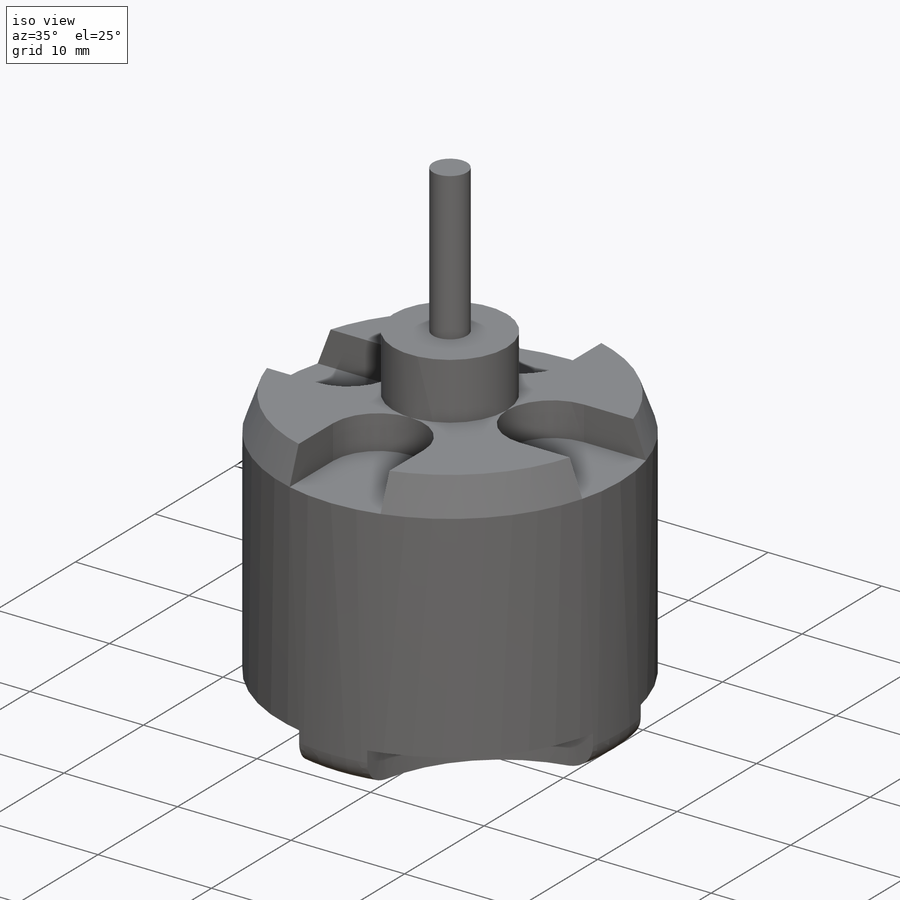
[diagram: iso view]
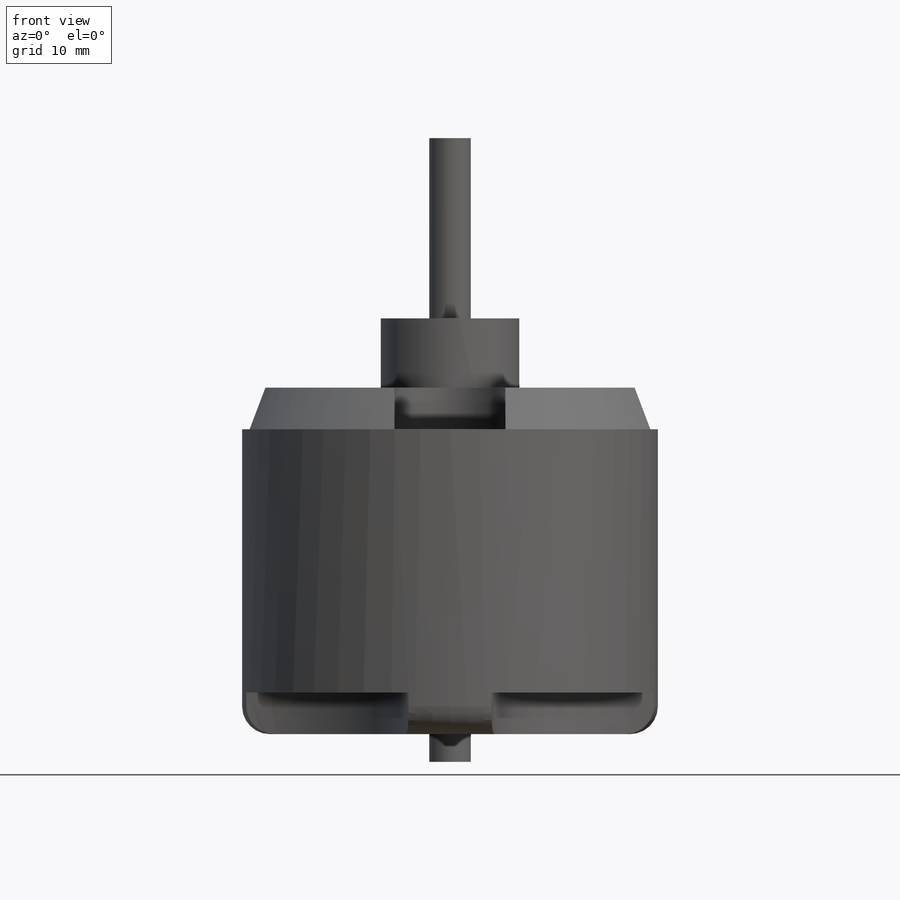
[diagram: front view]
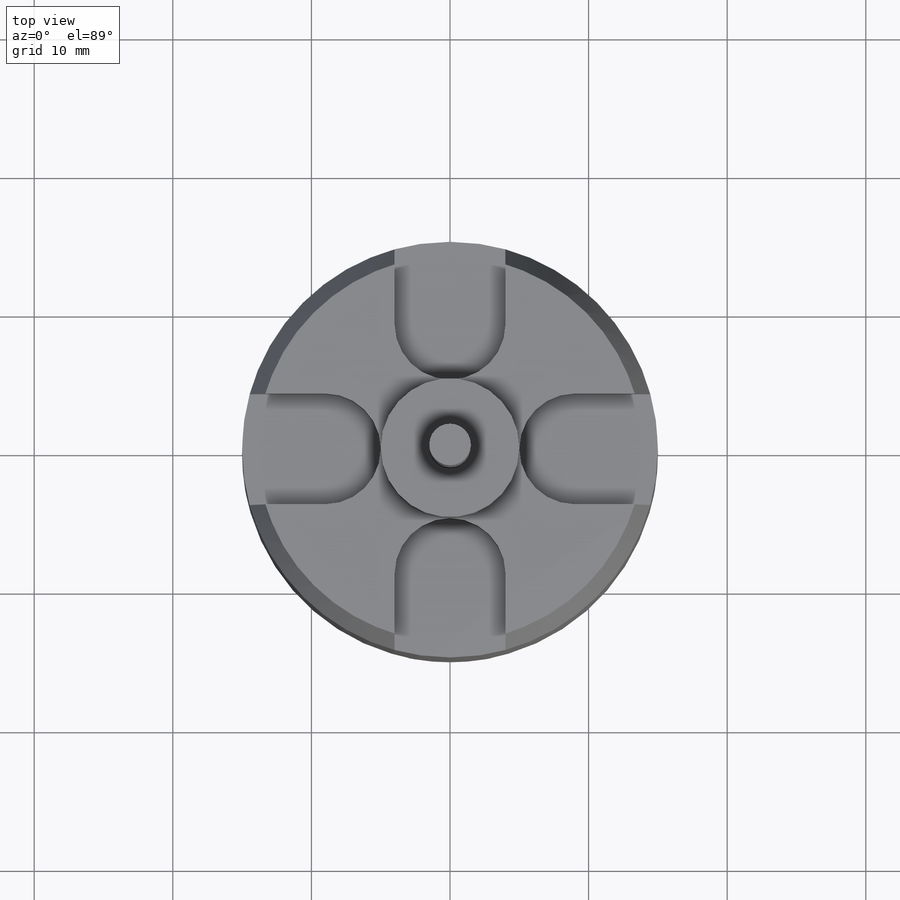
[diagram: top view]
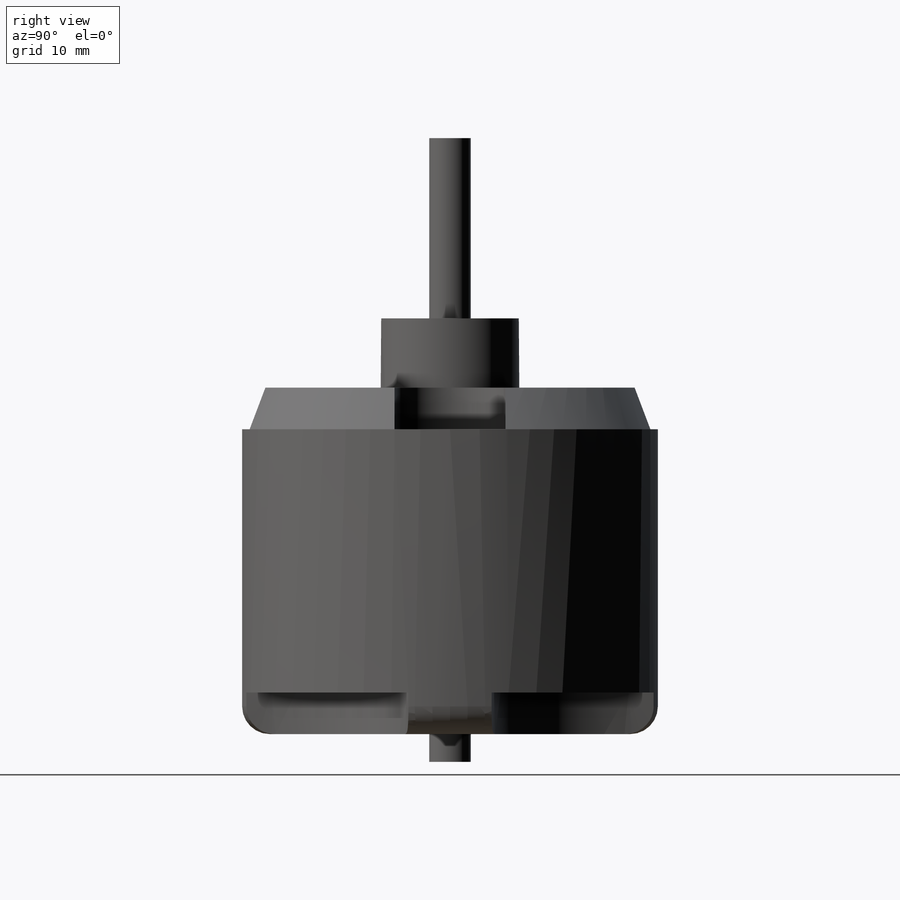
[diagram: right view]
SOLIDWORKS PART (.sldprt)
format: sldprt  version: not decoded by parser v0  size: 262,144 bytes
history: native  units: mm
features: sketch x4, plane x3, cut_extrude x3, material x1, revolve x1, chamfer x1, fillet x1 (+8 scaffold rows collapsed)
feature tree (22):
  scaffold x8  (default folders/planes/origin — collapsed)
  material  "Matériau <non spécifié>"
  plane  "Plan de face"
  plane  "Plan de dessus"
  plane  "Plan de droite"
  sketch  "Esquisse1"  dims[c1.D1=15.0mm c1.D2=10.0mm c1.D3=1.5mm c1.D4=6.5mm c2.D3=3.5mm c2.D4=43.0mm c2.D5=25.0mm c2.D6=5.0mm c2.D2=1.5mm c2.D7=20.0mm c2.D8=2.0mm c2.D9=1.5mm c3.D7=20.0mm]
  revolve  "Révolution1"  Angle=360deg
  chamfer  "Chanfrein1"  Distance=3mm Angle=20deg
  fillet  "Congé1"  Radius=2mm
  sketch  "Esquisse2"  dims[c1.D1=8.0mm c1.D2=4.0mm c1.D3=10.0mm c1.D4=10.0mm c2.D4=4.0]
  cut_extrude  "Enlèv. mat.-Extru.1"  Depth=3mm
  sketch  "Esquisse3"  dims[c1.D3=3.0mm c1.D4=3.0mm c1.D6=3.0mm c1.D13=3.0mm c1.D1=3.0mm c1.D2=3.0mm c2.D3=3.0mm c2.D4=3.0mm c2.D5=30.0mm c2.D6=15.0mm c2.D7=30.0mm c2.D8=15.0mm c2.D9=30.0mm c2.D10=30.0mm c2.D11=15.0mm c2.D12=15.0mm c2.D14=9.0mm c2.D15=9.0mm c2.D16=9.0mm c2.D17=9.0mm]
  cut_extrude  "Enlèv. mat.-Extru.2"  Depth=3mm
  sketch  "Esquisse4"  dims[D1=10.0mm]
  cut_extrude  "Enlèv. mat.-Extru.3"  Depth=1mm
decode coverage: 10 of 10 modeling features carry decoded parameters
note: suppression state not decoded; provenance and decode notes live in map.json
